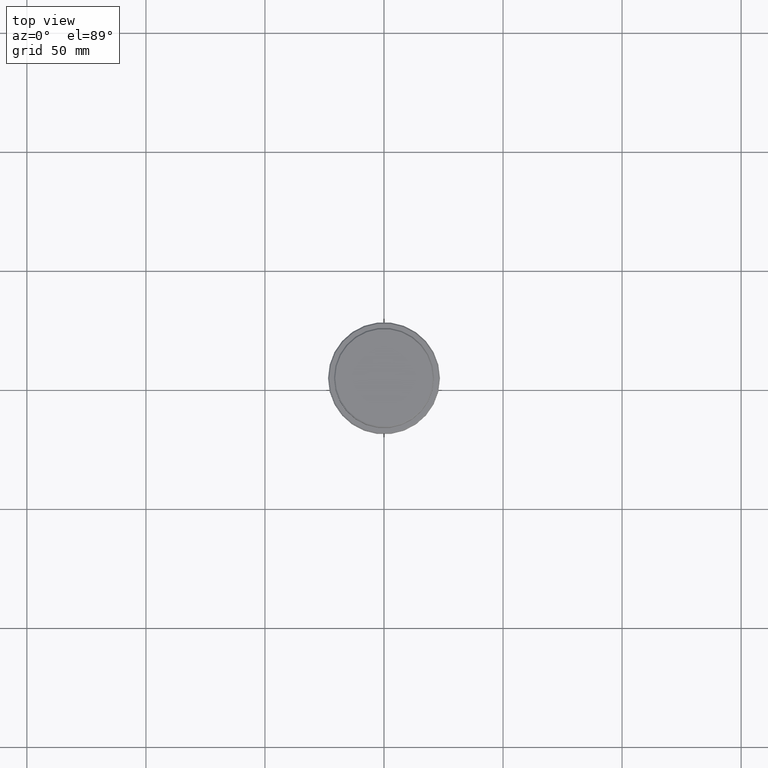
[diagram: clean part render]
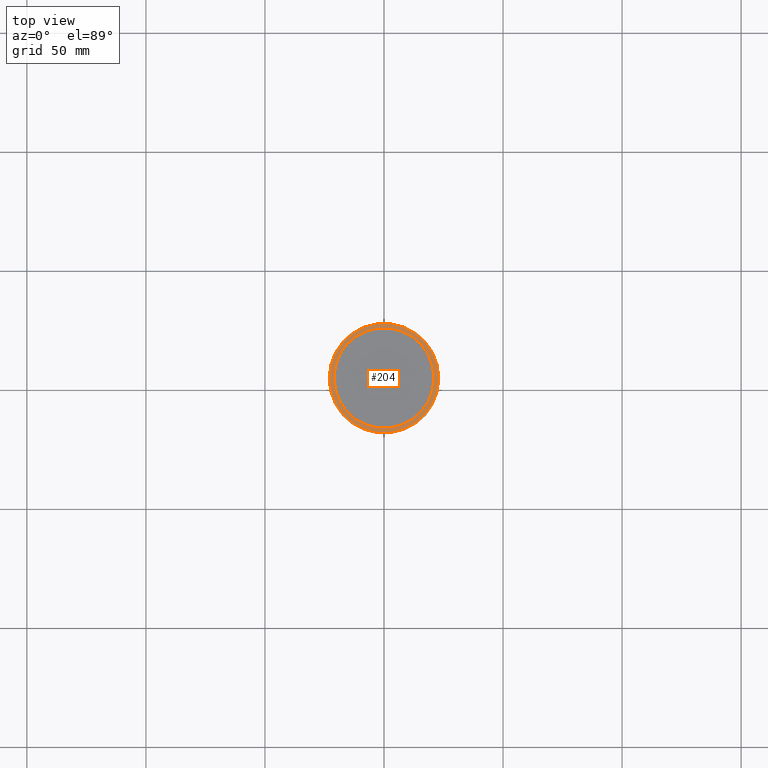
[diagram: same view with one face highlighted and labeled with its STEP entity id]
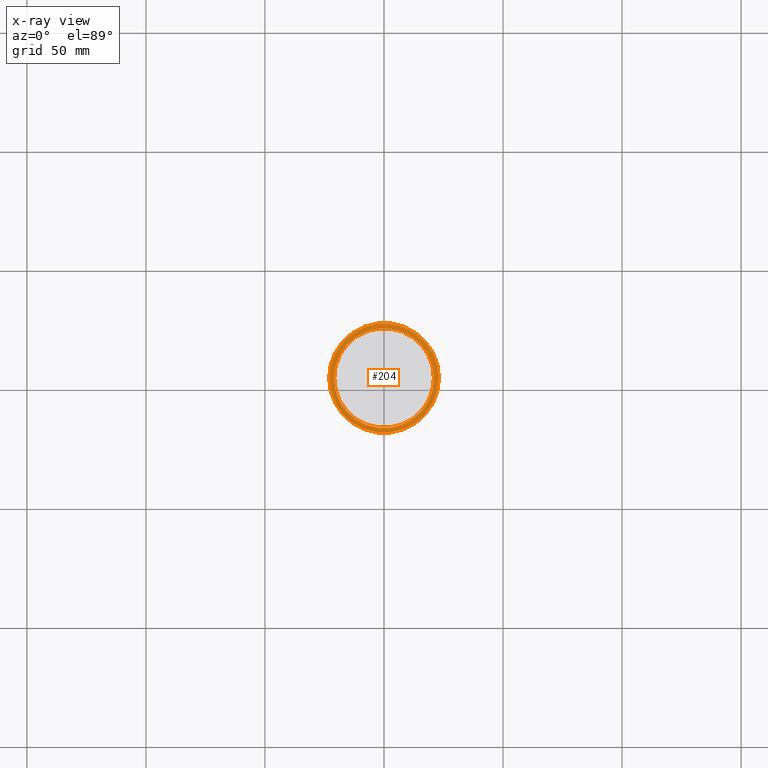
[diagram: x-ray of the same camera — body ghosted, the highlighted face saturated]
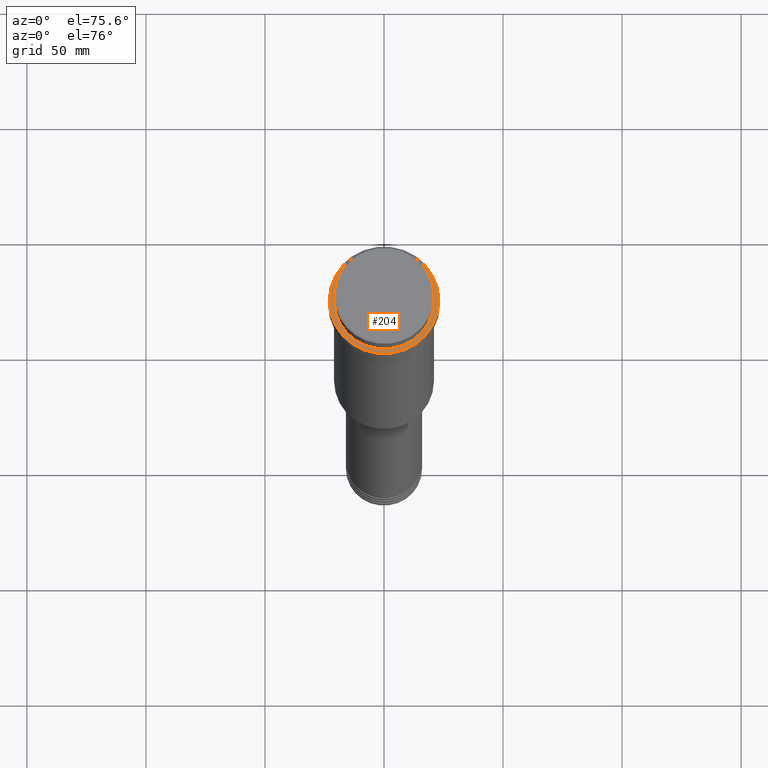
[diagram: same view with one face highlighted and labeled with its STEP entity id]
A machine part, top view. The second image highlights one B-rep face of the part: STEP entity #204.
The next image is the same camera in x-ray: the body ghosted, the highlighted face saturated — about 0% of this face is hidden behind the body in this view.
A second angle (auxiliary view) of the same face is appended — the face is thin or edge-on in the first view.
In plain terms, the highlighted planar face has unit normal (0, -0, 1).
Its self-contained STEP definition (entity closure, byte-faithful):
#4 = CARTESIAN_POINT ( 'NONE',  ( 0.000000000000000000, 0.000000000000000000, -9.000000000000000000 ) ) ;
#99 = CIRCLE ( 'NONE', #887, 23.00000000000005329 ) ;
#112 = VERTEX_POINT ( 'NONE', #709 ) ;
#127 = VERTEX_POINT ( 'NONE', #249 ) ;
#191 = EDGE_CURVE ( 'NONE', #127, #276, #99, .T. ) ;
#204 = ADVANCED_FACE ( 'NONE', ( #1049, #1365 ), #1253, .T. ) ;
#222 = DIRECTION ( 'NONE',  ( -0.000000000000000000, -0.000000000000000000, 1.000000000000000000 ) ) ;
#232 = DIRECTION ( 'NONE',  ( 1.000000000000000000, 0.000000000000000000, 0.000000000000000000 ) ) ;
#249 = CARTESIAN_POINT ( 'NONE',  ( 23.00000000000005329, 2.847303808017599689E-15, -9.000000000000000000 ) ) ;
#261 = CIRCLE ( 'NONE', #936, 23.00000000000005329 ) ;
#276 = VERTEX_POINT ( 'NONE', #772 ) ;
#277 = CARTESIAN_POINT ( 'NONE',  ( 0.000000000000000000, 20.49999999999999645, -9.000000000000000000 ) ) ;
#279 = DIRECTION ( 'NONE',  ( 1.000000000000000000, 0.000000000000000000, 0.000000000000000000 ) ) ;
#334 = EDGE_CURVE ( 'NONE', #741, #112, #431, .T. ) ;
#350 = ORIENTED_EDGE ( 'NONE', *, *, #485, .T. ) ;
#390 = CIRCLE ( 'NONE', #538, 20.99999999999999289 ) ;
#431 = CIRCLE ( 'NONE', #1215, 20.99999999999999289 ) ;
#485 = EDGE_CURVE ( 'NONE', #276, #127, #261, .T. ) ;
#538 = AXIS2_PLACEMENT_3D ( 'NONE', #4, #852, #232 ) ;
#581 = DIRECTION ( 'NONE',  ( 0.000000000000000000, 0.000000000000000000, -1.000000000000000000 ) ) ;
#670 = ORIENTED_EDGE ( 'NONE', *, *, #730, .T. ) ;
#694 = DIRECTION ( 'NONE',  ( 1.000000000000000000, 0.000000000000000000, 0.000000000000000000 ) ) ;
#709 = CARTESIAN_POINT ( 'NONE',  ( -20.99999999999999289, 2.571758278209440872E-15, -9.000000000000000000 ) ) ;
#713 = DIRECTION ( 'NONE',  ( -0.000000000000000000, -0.000000000000000000, 1.000000000000000000 ) ) ;
#730 = EDGE_CURVE ( 'NONE', #112, #741, #390, .T. ) ;
#741 = VERTEX_POINT ( 'NONE', #1109 ) ;
#772 = CARTESIAN_POINT ( 'NONE',  ( -23.00000000000005329, 0.000000000000000000, -9.000000000000000000 ) ) ;
#783 = ORIENTED_EDGE ( 'NONE', *, *, #334, .T. ) ;
#852 = DIRECTION ( 'NONE',  ( 0.000000000000000000, 0.000000000000000000, -1.000000000000000000 ) ) ;
#887 = AXIS2_PLACEMENT_3D ( 'NONE', #1164, #713, #694 ) ;
#895 = CARTESIAN_POINT ( 'NONE',  ( 0.000000000000000000, 0.000000000000000000, -9.000000000000000000 ) ) ;
#907 = EDGE_LOOP ( 'NONE', ( #783, #670 ) ) ;
#929 = DIRECTION ( 'NONE',  ( 0.000000000000000000, -0.000000000000000000, 1.000000000000000000 ) ) ;
#936 = AXIS2_PLACEMENT_3D ( 'NONE', #1318, #222, #1194 ) ;
#978 = AXIS2_PLACEMENT_3D ( 'NONE', #277, #929, #1080 ) ;
#1049 = FACE_OUTER_BOUND ( 'NONE', #1294, .T. ) ;
#1080 = DIRECTION ( 'NONE',  ( 1.000000000000000000, 0.000000000000000000, 0.000000000000000000 ) ) ;
#1109 = CARTESIAN_POINT ( 'NONE',  ( 20.99999999999999289, 0.000000000000000000, -9.000000000000000000 ) ) ;
#1164 = CARTESIAN_POINT ( 'NONE',  ( 0.000000000000000000, 0.000000000000000000, -9.000000000000000000 ) ) ;
#1194 = DIRECTION ( 'NONE',  ( 1.000000000000000000, 0.000000000000000000, 0.000000000000000000 ) ) ;
#1215 = AXIS2_PLACEMENT_3D ( 'NONE', #895, #581, #279 ) ;
#1233 = ORIENTED_EDGE ( 'NONE', *, *, #191, .T. ) ;
#1253 = PLANE ( 'NONE',  #978 ) ;
#1294 = EDGE_LOOP ( 'NONE', ( #350, #1233 ) ) ;
#1318 = CARTESIAN_POINT ( 'NONE',  ( 0.000000000000000000, 0.000000000000000000, -9.000000000000000000 ) ) ;
#1365 = FACE_BOUND ( 'NONE', #907, .T. ) ;